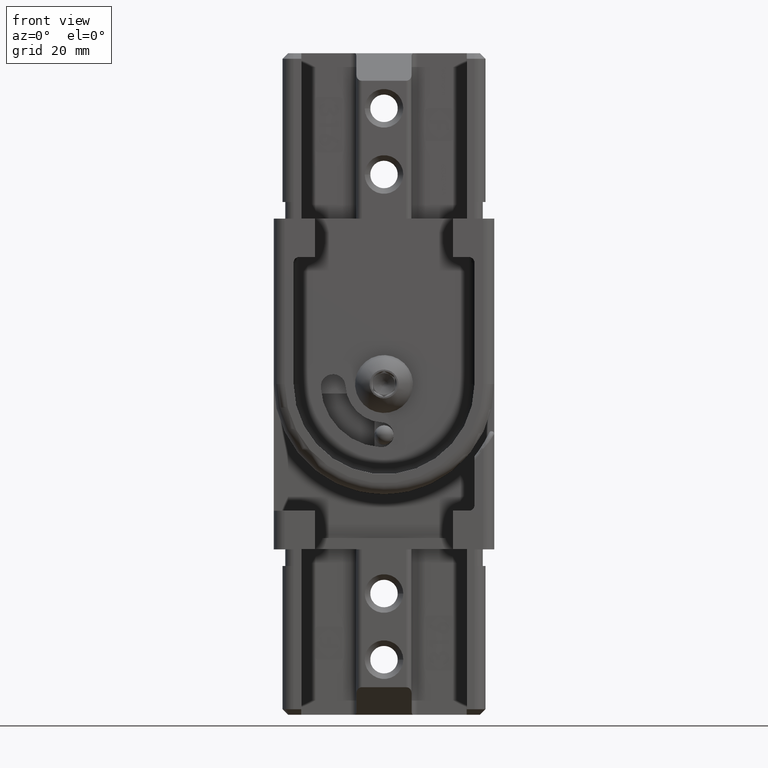
[diagram: clean part render]
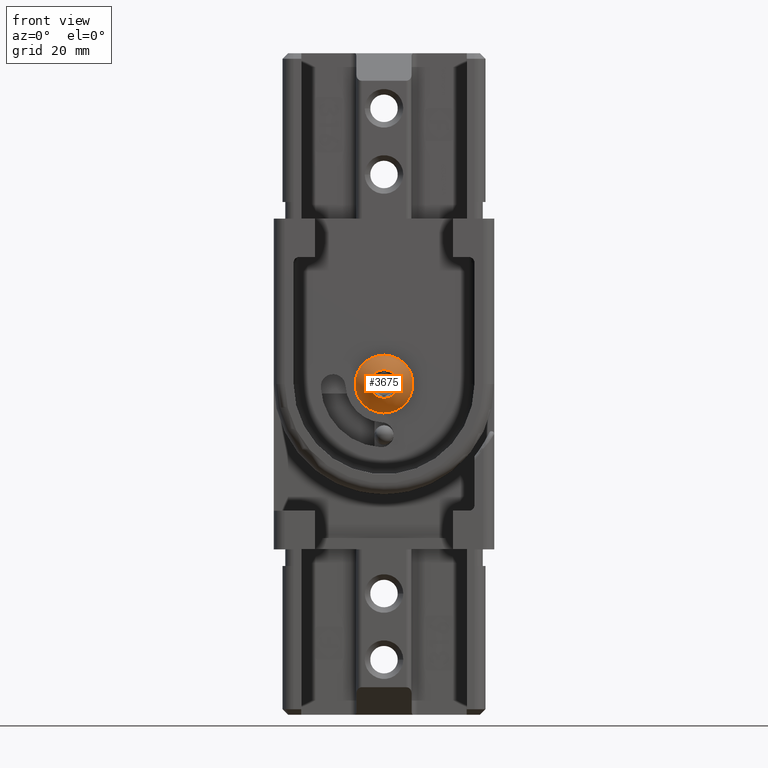
[diagram: same view with one face highlighted and labeled with its STEP entity id]
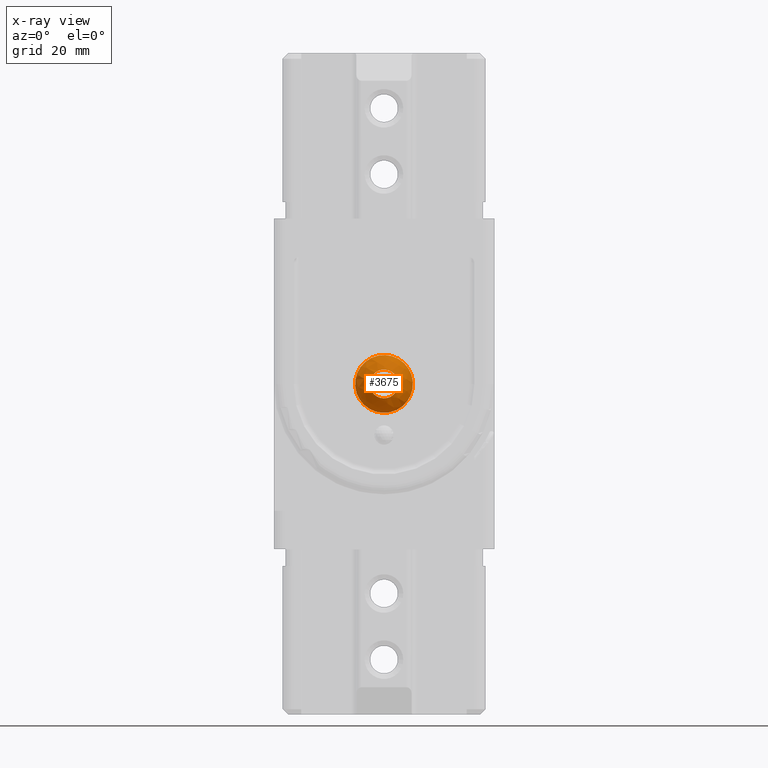
[diagram: x-ray of the same camera — body ghosted, the highlighted face saturated]
A machine part, front view. The second image highlights one B-rep face of the part: STEP entity #3675.
The next image is the same camera in x-ray: the body ghosted, the highlighted face saturated — about 0% of this face is hidden behind the body in this view.
In plain terms, the highlighted spherical surface has radius 5.6036 mm.
Its self-contained STEP definition (entity closure, byte-faithful):
#2940 = CARTESIAN_POINT ( 'NONE',  ( 0.0000000000000000000, 4.958921003435260200, -7.703719777548943400E-031 ) ) ;
#3224 = VERTEX_POINT ( 'NONE', #13874 ) ;
#3675 = ADVANCED_FACE ( 'NONE', ( #11597, #20379 ), #21696, .T. ) ;
#6156 = AXIS2_PLACEMENT_3D ( 'NONE', #6590, #6844, #13100 ) ;
#6376 = CIRCLE ( 'NONE', #26531, 2.609401076758506700 ) ;
#6590 = CARTESIAN_POINT ( 'NONE',  ( -8.666684749742561300E-031, 2.999999999999999100, 7.703719777548943400E-031 ) ) ;
#6844 = DIRECTION ( 'NONE',  ( 9.860761315262647600E-032, -1.000000000000000000, -2.465190328815661900E-032 ) ) ;
#9796 = CARTESIAN_POINT ( 'NONE',  ( 2.897017155898969100E-016, -8.673617379884037400E-016, -2.609401076758506700 ) ) ;
#10190 = EDGE_CURVE ( 'NONE', #3224, #3224, #16083, .T. ) ;
#10590 = EDGE_CURVE ( 'NONE', #13318, #13318, #6376, .T. ) ;
#11571 = DIRECTION ( 'NONE',  ( -1.110223024625154100E-016, -2.465190328815663000E-032, 1.000000000000000000 ) ) ;
#11597 = FACE_OUTER_BOUND ( 'NONE', #20312, .T. ) ;
#13100 = DIRECTION ( 'NONE',  ( 1.110223024625154100E-016, 0.0000000000000000000, -1.000000000000000000 ) ) ;
#13318 = VERTEX_POINT ( 'NONE', #9796 ) ;
#13874 = CARTESIAN_POINT ( 'NONE',  ( 5.828670879282063000E-016, 2.999999999999999100, -5.250000000000010700 ) ) ;
#16083 = CIRCLE ( 'NONE', #6156, 5.250000000000010700 ) ;
#16903 = DIRECTION ( 'NONE',  ( 9.860761315262647600E-032, -1.000000000000000000, -2.465190328815661900E-032 ) ) ;
#17003 = ORIENTED_EDGE ( 'NONE', *, *, #10190, .T. ) ;
#17489 = DIRECTION ( 'NONE',  ( 1.000000000000000000, 0.0000000000000000000, 1.110223024625154100E-016 ) ) ;
#18759 = AXIS2_PLACEMENT_3D ( 'NONE', #2940, #11571, #17489 ) ;
#19932 = EDGE_LOOP ( 'NONE', ( #22870 ) ) ;
#20312 = EDGE_LOOP ( 'NONE', ( #17003 ) ) ;
#20379 = FACE_OUTER_BOUND ( 'NONE', #19932, .T. ) ;
#21696 = SPHERICAL_SURFACE ( 'NONE', #18759, 5.603558824327607500 ) ;
#22870 = ORIENTED_EDGE ( 'NONE', *, *, #10590, .F. ) ;
#22932 = DIRECTION ( 'NONE',  ( 1.110223024625154100E-016, -7.380735608416688400E-032, -1.000000000000000000 ) ) ;
#26531 = AXIS2_PLACEMENT_3D ( 'NONE', #26995, #16903, #22932 ) ;
#26995 = CARTESIAN_POINT ( 'NONE',  ( 5.777789833161707600E-031, -8.673617379884035500E-016, -7.703719777548943400E-031 ) ) ;